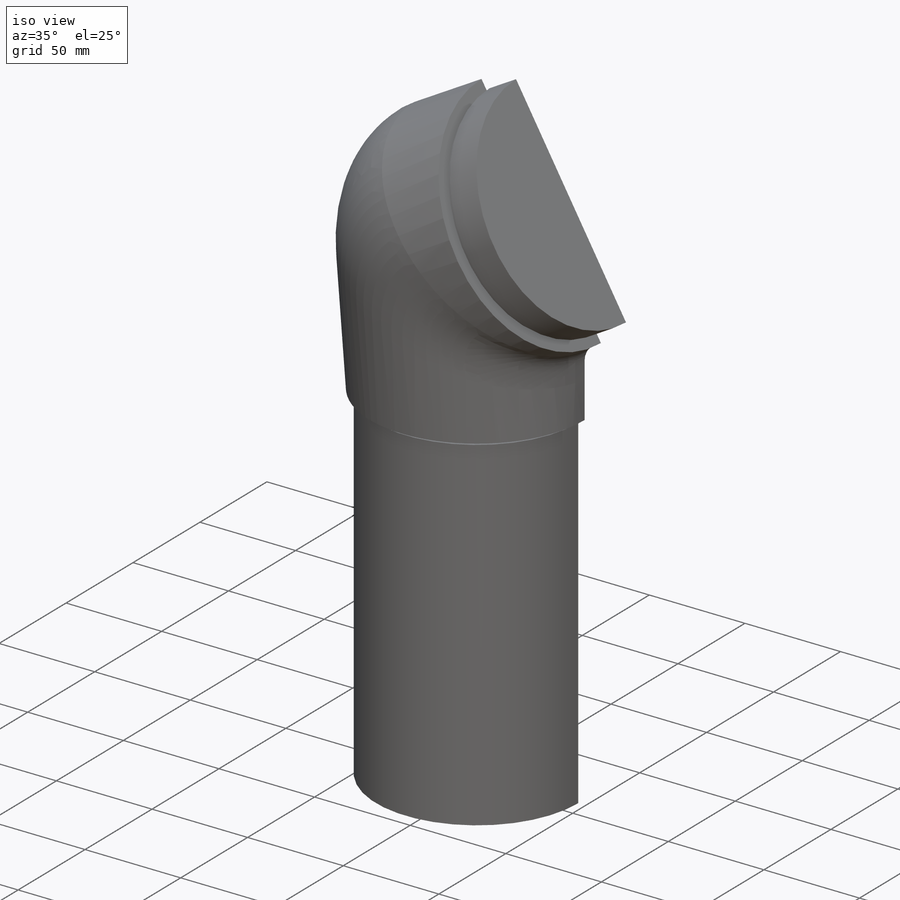
[diagram: iso view]
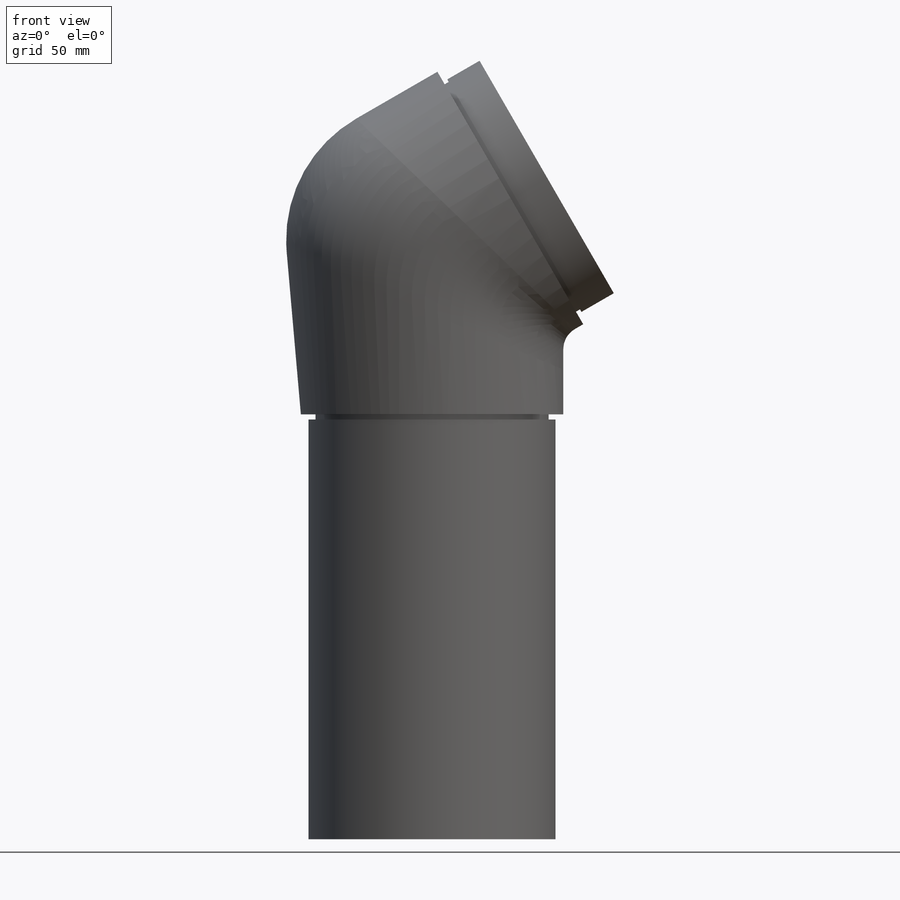
[diagram: front view]
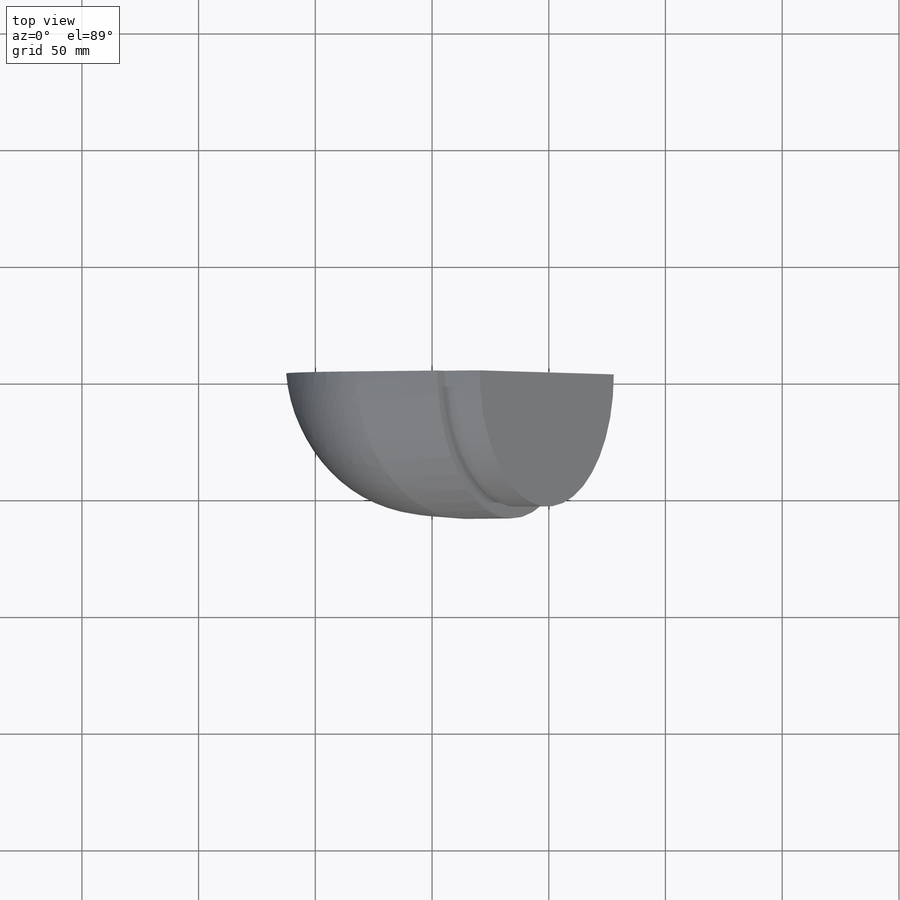
[diagram: top view]
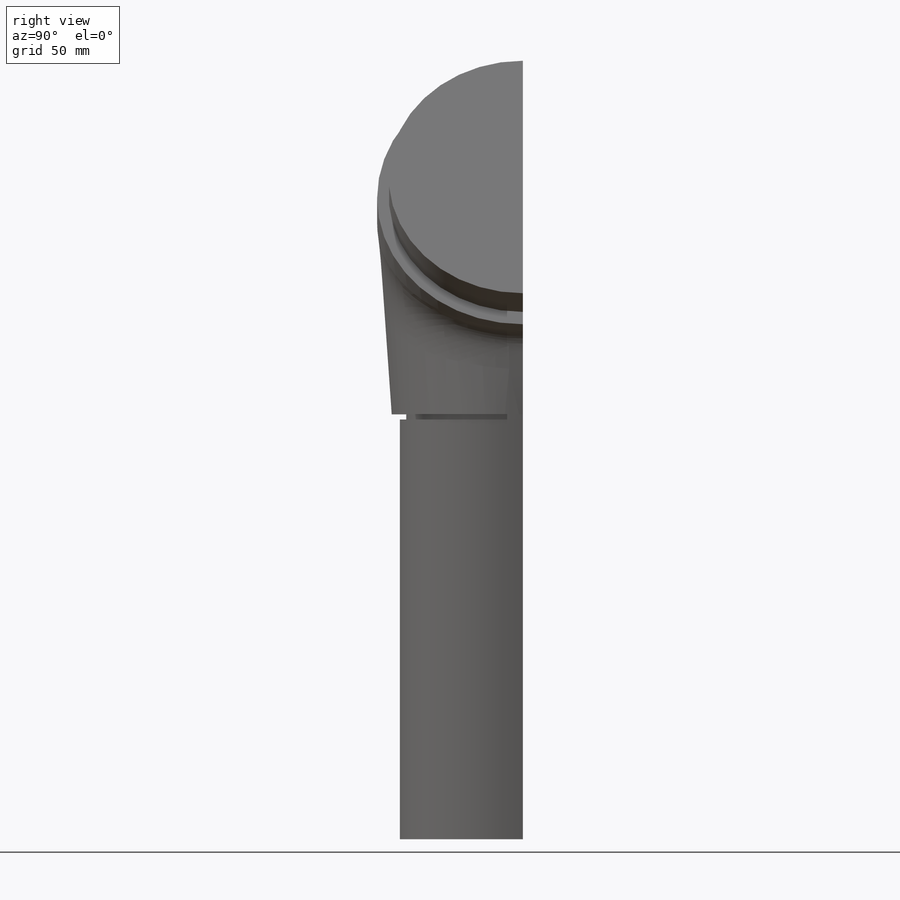
[diagram: right view]
SOLIDWORKS PART (.sldprt)
format: sldprt  version: not decoded by parser v0  size: 347,648 bytes
history: native  units: mm
features: sketch x6, plane x3, revolve x2, cut_extrude x2, material x1 (+8 scaffold rows collapsed)
feature tree (22):
  scaffold x8  (default folders/planes/origin — collapsed)
  material  "Material <nicht festgelegt>"
  plane  "Ebene vorne"
  plane  "Ebene oben"
  plane  "Ebene rechts"
  sketch  "Skizze1"  dims[c1.D1=15.0mm c1.D2=105.0mm c1.D3=85.0mm c1.D4=97.0mm c1.D5=47.0mm c1.D6=3.0mm c1.D7=13.4mm c1.D8=105.8mm c1.D9=5.0mm c1.D10=2.8mm c1.D11=46.4mm c1.D12=~245.224556mm c2.D12=5.0deg c2.D13=112.4mm c2.D14=217.49mm c2.D15=~256.756189mm c3.D15=75.0deg c3.D14=2.2mm c3.D1=182.0mm c3.D3=105.8mm c3.D4=~200.230552mm c4.D4=90.0deg c5.D4=~99.88162mm c5.D5=2.2mm]
  revolve  "Rotation1"  Angle=360deg
  sketch  "Skizze3"  dims[c1.D1=~22.500429mm c2.D1=30.0deg c2.D2=124.9mm c2.D3=2.3mm c2.D4=328.8mm c2.D5=~116.040446mm c3.D5=~0.310224deg c3.D6=~116.040446mm c4.D6=~0.310224deg c4.D5=115.0mm c4.D2=18.0mm c5.D6=124.9mm c5.D7=115.0mm c5.D8=2.0mm c5.D9=~1.67091mm c6.D9=90.0deg c7.D9=112.5mm]
  revolve  "Rotation2"  Angle=360deg
  sketch  "Skizze5"  dims[c1.D1=~154.079487mm c2.D1=30.0deg c3.D1=~146.386606mm c4.D1=30.0deg c4.D2=217.49mm c4.D3=59.305mm c5.D2=~6.287222mm c5.D3=~40.710642mm]
  cut_extrude  "Schnitt-Linear austragen10"  Depth=80mm
  sketch  "Skizze92"  dims[D2=60.0mm D3=10.0mm D1=112.4mm D4=~27.92358mm]
  cut_extrude  "Schnitt-Linear austragen12"  [1 undecoded]
  sketch  "Skizze91"  dims[D1=112.4mm]
  sketch  "Skizze92<5>"
decode coverage: 8 of 10 modeling features carry decoded parameters
note: ~ marks probable driven/reference dimensions
note: 1 parameter value undecoded
note: suppression state not decoded; provenance and decode notes live in map.json
